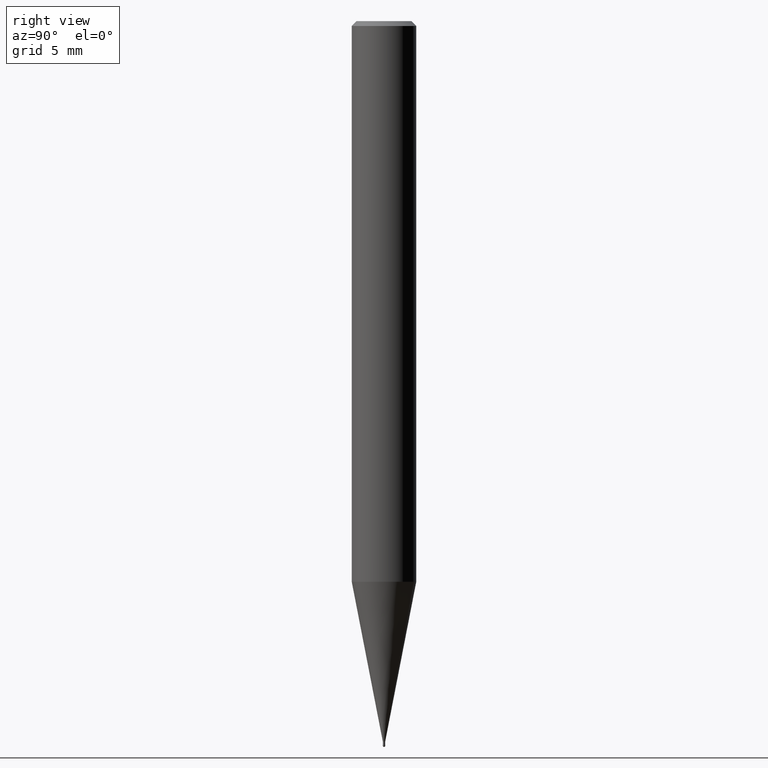
[diagram: clean part render]
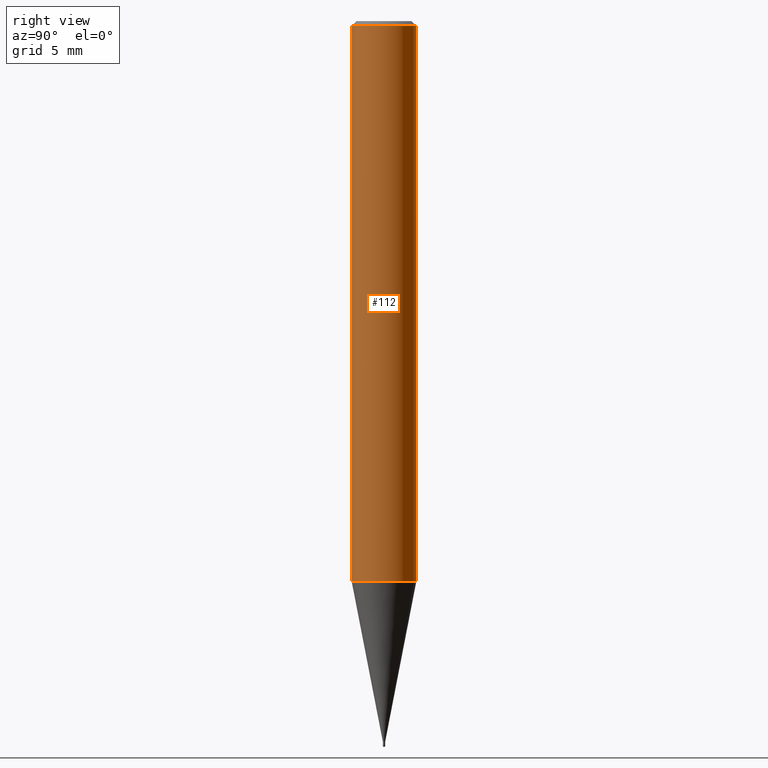
[diagram: same view with one face highlighted and labeled with its STEP entity id]
A machine part, right view. The second image highlights one B-rep face of the part: STEP entity #112.
In plain terms, the highlighted cylindrical surface (edge-blend (fillet) strip) has radius 2 mm, axis along (-0, -0, 1).
Its self-contained STEP definition (entity closure, byte-faithful):
#102=EDGE_CURVE('',#140,#210,#244,.T.);
#110=EDGE_CURVE('',#156,#140,#252,.T.);
#112=ADVANCED_FACE('',(#254),#255,.T.);
#128=VERTEX_POINT('',#272);
#140=VERTEX_POINT('',#285);
#156=VERTEX_POINT('',#302);
#162=EDGE_CURVE('',#156,#128,#310,.T.);
#210=VERTEX_POINT('',#368);
#212=EDGE_CURVE('',#210,#128,#370,.T.);
#244=CIRCLE('',#396,2.0);
#252=LINE('',#407,#408);
#254=FACE_OUTER_BOUND('',#410,.T.);
#255=CYLINDRICAL_SURFACE('',#411,2.0);
#272=CARTESIAN_POINT('',(2.44921270764475E-016,-2.0,-0.299999999999997));
#285=CARTESIAN_POINT('',(0.0,2.0,-34.758));
#302=CARTESIAN_POINT('',(0.0,2.0,-0.299999999999997));
#310=CIRCLE('',#481,2.0);
#368=CARTESIAN_POINT('',(2.44921270764475E-016,-2.0,-34.758));
#370=LINE('',#553,#554);
#396=AXIS2_PLACEMENT_3D('',#568,#569,#570);
#407=CARTESIAN_POINT('',(-2.44921270764475E-016,2.0,-17.529));
#408=VECTOR('',#577,1.0);
#410=EDGE_LOOP('',(#579,#580,#581,#582));
#411=AXIS2_PLACEMENT_3D('',#583,#584,#585);
#481=AXIS2_PLACEMENT_3D('',#641,#642,#643);
#553=CARTESIAN_POINT('',(2.44921270764475E-016,-2.0,-17.529));
#554=VECTOR('',#736,1.0);
#568=CARTESIAN_POINT('',(0.0,0.0,-34.758));
#569=DIRECTION('',(0.0,0.0,-1.0));
#570=DIRECTION('',(0.0,1.0,0.0));
#577=DIRECTION('',(0.0,0.0,-1.0));
#579=ORIENTED_EDGE('',*,*,#110,.F.);
#580=ORIENTED_EDGE('',*,*,#162,.T.);
#581=ORIENTED_EDGE('',*,*,#212,.F.);
#582=ORIENTED_EDGE('',*,*,#102,.F.);
#583=CARTESIAN_POINT('',(0.0,0.0,-17.529));
#584=DIRECTION('',(-0.0,-0.0,1.0));
#585=DIRECTION('',(0.0,1.0,0.0));
#641=CARTESIAN_POINT('',(0.0,0.0,-0.299999999999997));
#642=DIRECTION('',(0.0,0.0,-1.0));
#643=DIRECTION('',(0.0,1.0,0.0));
#736=DIRECTION('',(-0.0,-0.0,1.0));